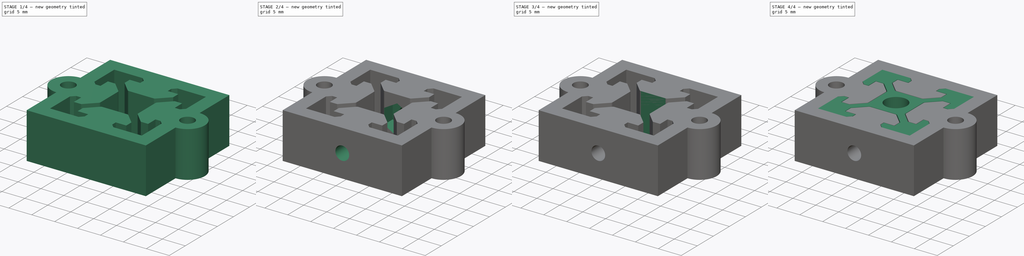
[diagram: build sequence overview — one tinted view per stage of 4, left to right]
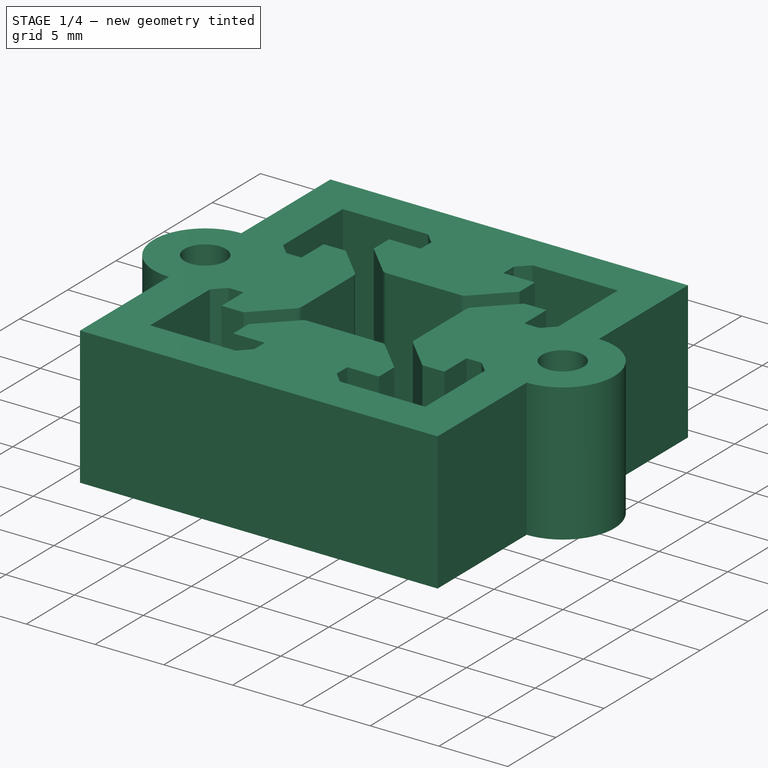
[diagram: stage 1 of 4 — iso view after this stage's code; geometry added in this stage tinted green]
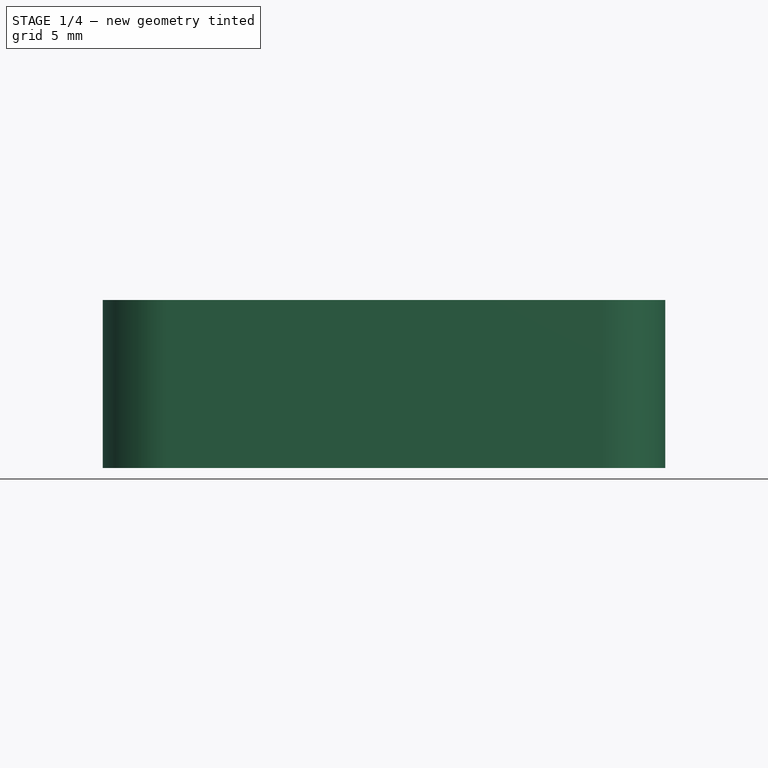
[diagram: stage 1 of 4 — front view after this stage's code; geometry added in this stage tinted green]
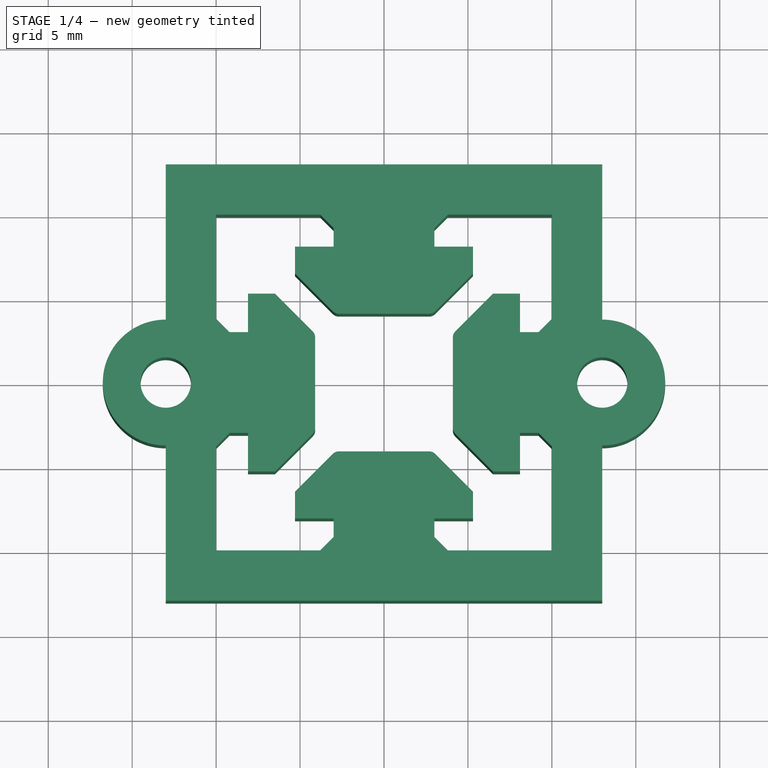
[diagram: stage 1 of 4 — top view after this stage's code; geometry added in this stage tinted green]
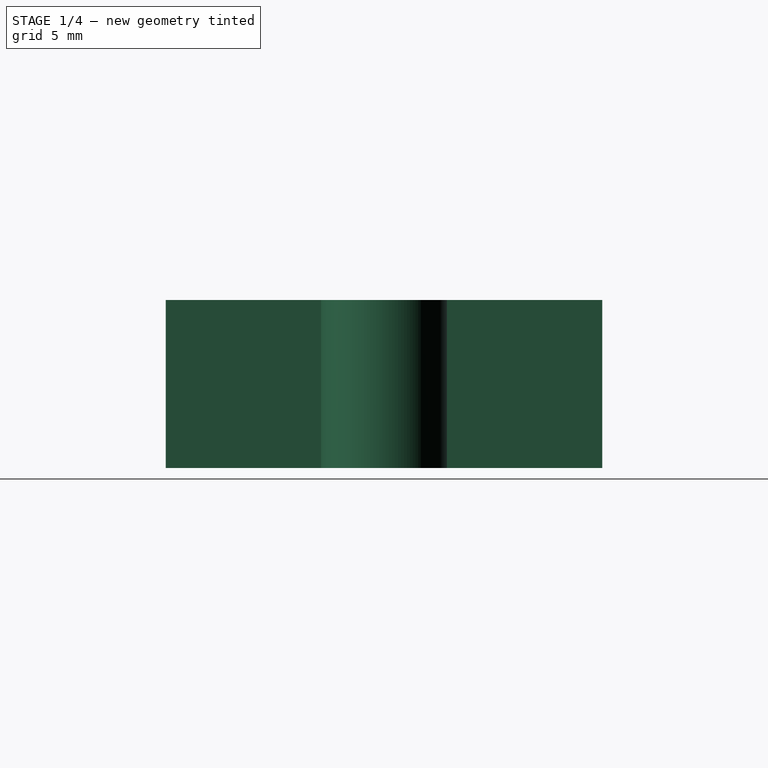
[diagram: stage 1 of 4 — right view after this stage's code; geometry added in this stage tinted green]
FCSTD DOCUMENT  (FreeCAD 0.19R23463 (Git))
Label: 2020
License: All rights reserved
LicenseURL: http://en.wikipedia.org/wiki/All_rights_reserved
objects: Sketcher::SketchObject×12, PartDesign::Pad×5, PartDesign::Pocket×5, PartDesign::Body×4, PartDesign::PolarPattern×3, PartDesign::Plane×3, Spreadsheet::Sheet×2
note: 42 computed .brp shape members not serialized (recipe doc carries the construction recipe); baked Part::Feature solids carry a one-line shape summary decoded from their .brp

FEATURE [PartDesign::Body] Body002  label="2020_slider"
  Group = -> [Sketch006,Sketch009,Pad004]
  Origin = -> Origin002
  Placement = pos=(0,0,24) rot=(0,0,1;0rad)
  Tip = -> Pad004
FEATURE [Sketcher::SketchObject] Sketch010
  MapMode = 5
  Support = -> [XY_Plane003]
  sketch-geometry (22):
    g0: LineSegment StartX=-10 StartY=10 StartZ=0 EndX=10 EndY=10 EndZ=0
    g1: LineSegment StartX=10 StartY=10 StartZ=0 EndX=10 EndY=-10 EndZ=0
    g2: LineSegment StartX=10 StartY=-10 StartZ=0 EndX=-10 EndY=-10 EndZ=0
    g3: LineSegment StartX=-10 StartY=-10 StartZ=0 EndX=-10 EndY=10 EndZ=0
    g4: LineSegment StartX=-10 StartY=10 StartZ=0 EndX=10 EndY=-10 EndZ=0
    g5: LineSegment StartX=-10 StartY=-10 StartZ=0 EndX=10 EndY=10 EndZ=0
    g6: GeomPoint X=0 Y=0 Z=0
    g7: LineSegment StartX=-13 StartY=13 StartZ=0 EndX=13 EndY=13 EndZ=0
    g8: LineSegment StartX=13 StartY=13 StartZ=0 EndX=13 EndY=-13 EndZ=0
    g9: LineSegment StartX=13 StartY=-13 StartZ=0 EndX=-13 EndY=-13 EndZ=0
    g10: LineSegment StartX=-13 StartY=-13 StartZ=0 EndX=-13 EndY=13 EndZ=0
    g11: LineSegment StartX=-13 StartY=13 StartZ=0 EndX=13 EndY=-13 EndZ=0
    g12: LineSegment StartX=-13 StartY=-13 StartZ=0 EndX=13 EndY=13 EndZ=0
    g13: GeomPoint X=0 Y=0 Z=0
    g14: ArcOfCircle CenterX=-13 CenterY=0 CenterZ=0 NormalX=0 NormalY=0 NormalZ=1 AngleXU=0 Radius=3.75 StartAngle=1.5708 EndAngle=4.71239
    g15: ArcOfCircle CenterX=13 CenterY=0 CenterZ=0 NormalX=0 NormalY=0 NormalZ=1 AngleXU=0 Radius=3.75 StartAngle=4.71239 EndAngle=7.85398
    g16: LineSegment StartX=-13 StartY=13 StartZ=0 EndX=-13 EndY=3.75 EndZ=0
    g17: LineSegment StartX=-13 StartY=-3.75 StartZ=0 EndX=-13 EndY=-13 EndZ=0
    g18: LineSegment StartX=13 StartY=-13 StartZ=0 EndX=13 EndY=-3.75 EndZ=0
    g19: LineSegment StartX=13 StartY=3.75 StartZ=0 EndX=13 EndY=13 EndZ=0
    g20: Circle CenterX=-13 CenterY=0 CenterZ=0 NormalX=0 NormalY=0 NormalZ=1 AngleXU=0 Radius=1.5
    g21: Circle CenterX=13 CenterY=0 CenterZ=0 NormalX=0 NormalY=0 NormalZ=1 AngleXU=0 Radius=1.5
  constraints (56):
    c: Coincident(g0,g1)
    c: Coincident(g1,g2)
    c: Coincident(g2,g3)
    c: Coincident(g3,g0)
    c: Horizontal(g0)
    c: Vertical(g1)
    c: Equal(g0,g1)
    c: Vertical(g3)
    c: Horizontal(g2)
    c: DistanceX(g0,g0) = 20
    c: Coincident(g4,g0)
    c: Coincident(g4,g1)
    c: Coincident(g5,g2)
    c: Coincident(g5,g0)
    c: PointOnObject(g6,g4)
    c: PointOnObject(g6,g5)
    c: Coincident(g6,g-1)
    c: Coincident(g7,g8)
    c: Coincident(g8,g9)
    c: Coincident(g9,g10)
    c: Coincident(g10,g7)
    c: Horizontal(g7)
    c: Vertical(g8)
    c: Horizontal(g9)
    c: Coincident(g11,g7)
    c: Coincident(g11,g8)
    c: Coincident(g12,g9)
    c: Coincident(g12,g7)
    c: PointOnObject(g13,g11)
    c: PointOnObject(g13,g12)
    c: Coincident(g13,g6)
    c: Equal(g10,g7)
    c: DistanceY(g0,g7) = 3
    c: PointOnObject(g14,g10)
    c: PointOnObject(g14,g10)
    c: PointOnObject(g14,g10)
    c: PointOnObject(g14,g-1)
    c: PointOnObject(g15,g8)
    c: PointOnObject(g15,g8)
    c: PointOnObject(g15,g8)
    c: PointOnObject(g15,g-1)
    c: Equal(g15,g14)
    c: Diameter(g15) = 7.5
    c: Coincident(g16,g7)
    c: Coincident(g16,g14)
    c: Vertical(g16)
    c: Coincident(g17,g14)
    c: Coincident(g17,g9)
    c: Coincident(g18,g9)
    c: Coincident(g18,g15)
    c: Coincident(g19,g15)
    c: Coincident(g19,g7)
    c: Coincident(g20,g14)
    c: Coincident(g21,g15)
    c: Equal(g21,g20)
    c: Diameter(g20) = 3
FEATURE [Sketcher::SketchObject] Sketch011
  MapMode = 5
  Support = -> [XY_Plane003]
  expr: Constraints[46] = 4.2mm - <<sp_slider>>.B1
  expr: Constraints[13] = 1.8mm + <<sp_slider>>.B1 / 2
  expr: Constraints[11] = 6.2mm - <<sp_slider>>.B1
  expr: Constraints[0] = 10.8mm - <<sp_slider>>.B1
  expr: Constraints[10] = 1.8mm - <<sp_slider>>.B1
  sketch-geometry (18):
    g0: LineSegment StartX=-5.3 StartY=8.1 StartZ=0 EndX=-5.3 EndY=6.5 EndZ=0
    g1: LineSegment StartX=5.3 StartY=8.1 StartZ=0 EndX=5.3 EndY=6.5 EndZ=0
    g2: LineSegment StartX=-5.3 StartY=6.5 StartZ=0 EndX=-3.04645 EndY=4.24645 EndZ=0
    g3: LineSegment StartX=5.3 StartY=6.5 StartZ=0 EndX=3.04645 EndY=4.24645 EndZ=0
    g4: LineSegment StartX=2.69289 StartY=4.1 StartZ=0 EndX=-2.69289 EndY=4.1 EndZ=0
    g5: GeomPoint X=0 Y=8.1 Z=0
    g6: LineSegment StartX=-3 StartY=10 StartZ=0 EndX=-3 EndY=8.1 EndZ=0
    g7: LineSegment StartX=-5.3 StartY=8.1 StartZ=0 EndX=-3 EndY=8.1 EndZ=0
    g8: LineSegment StartX=3 StartY=8.1 StartZ=0 EndX=5.3 EndY=8.1 EndZ=0
    g9: ArcOfCircle CenterX=-2.69289 CenterY=4.6 CenterZ=0 NormalX=0 NormalY=0 NormalZ=1 AngleXU=0 Radius=0.5 StartAngle=3.92699 EndAngle=4.71239
    g10: ArcOfCircle CenterX=2.69289 CenterY=4.6 CenterZ=0 NormalX=0 NormalY=0 NormalZ=1 AngleXU=0 Radius=0.5 StartAngle=4.71239 EndAngle=5.49779
    g11: LineSegment StartX=-3 StartY=8.1 StartZ=0 EndX=3 EndY=8.1 EndZ=0
    g12: LineSegment StartX=3 StartY=8.1 StartZ=0 EndX=3 EndY=10 EndZ=0
    g13: LineSegment StartX=-3 StartY=8.1 StartZ=0 EndX=-3 EndY=9.2 EndZ=0
    g14: LineSegment StartX=-3.8 StartY=10 StartZ=0 EndX=3.8 EndY=10 EndZ=0
    g15: LineSegment StartX=-3.8 StartY=10 StartZ=0 EndX=-3 EndY=9.2 EndZ=0
    g16: LineSegment StartX=3.8 StartY=10 StartZ=0 EndX=3 EndY=9.2 EndZ=0
    g17: LineSegment StartX=3 StartY=9.2 StartZ=0 EndX=3 EndY=8.1 EndZ=0
  constraints (47):
    c: DistanceX(g0,g1) = 10.6
    c: Vertical(g0)
    c: Vertical(g1)
    c: Coincident(g2,g0)
    c: Coincident(g3,g1)
    c: Equal(g2,g3)
    c: Equal(g0,g1)
    c: Angle(g2,g0) = 2.35619
    c: PointOnObject(g5,g-2)
    c: Symmetric(g0,g1,g5)
    c: DistanceY(g1,g1) = 1.6
    c: DistanceX(g6,g12) = 6
    c: Vertical(g6)
    c: DistanceY(g8,g12) = 1.9
    c: Coincident(g7,g6)
    c: Equal(g8,g7)
    c: Horizontal(g7)
    c: Coincident(g0,g7)
    c: Horizontal(g8)
    c: Coincident(g1,g8)
    c: Tangent(g2,g9) = -1.5708
    c: Tangent(g4,g9) = 1.5708
    c: Tangent(g3,g10) = 1.5708
    c: Tangent(g4,g10) = 1.5708
    c: Diameter(g9) = 1
    c: Symmetric(g4,g4,g-2)
    c: Coincident(g11,g7)
    c: Coincident(g11,g8)
    c: Horizontal(g11)
    c: Coincident(g12,g8)
    c: Vertical(g12)
    c: Coincident(g7,g13)
    c: PointOnObject(g12,g14)
    c: PointOnObject(g6,g14)
    c: Coincident(g15,g14)
    c: Coincident(g15,g13)
    c: Coincident(g16,g14)
    c: PointOnObject(g16,g12)
    c: Coincident(g17,g16)
    c: Coincident(g17,g8)
    c: PointOnObject(g13,g6)
    c: Symmetric(g14,g14,g-2)
    c: DistanceY(g-1,g14) = 10
    c: Angle(g14,g16) = 0.785398
    c: Angle(g15,g14) = 0.785398
    c: DistanceY(g13,g14) = 0.8
    c: DistanceY(g4,g7) = 4
FEATURE [PartDesign::Pad] Pad005
  Direction = (1,1,1)
  Length = 10
  Length2 = 100
  Profile = -> Sketch010
  Type = 0
FEATURE [PartDesign::Pad] Pad006
  BaseFeature = -> Pad005
  Direction = (1,1,1)
  Length = 10
  Length2 = 100
  Profile = -> Sketch011
  Type = 0
FEATURE [PartDesign::PolarPattern] PolarPattern001
  Angle = 360
  Axis = -> Sketch011 [N_Axis]
  BaseFeature = -> Pad006
  Occurrences = 4
  Originals = -> [Pad006]
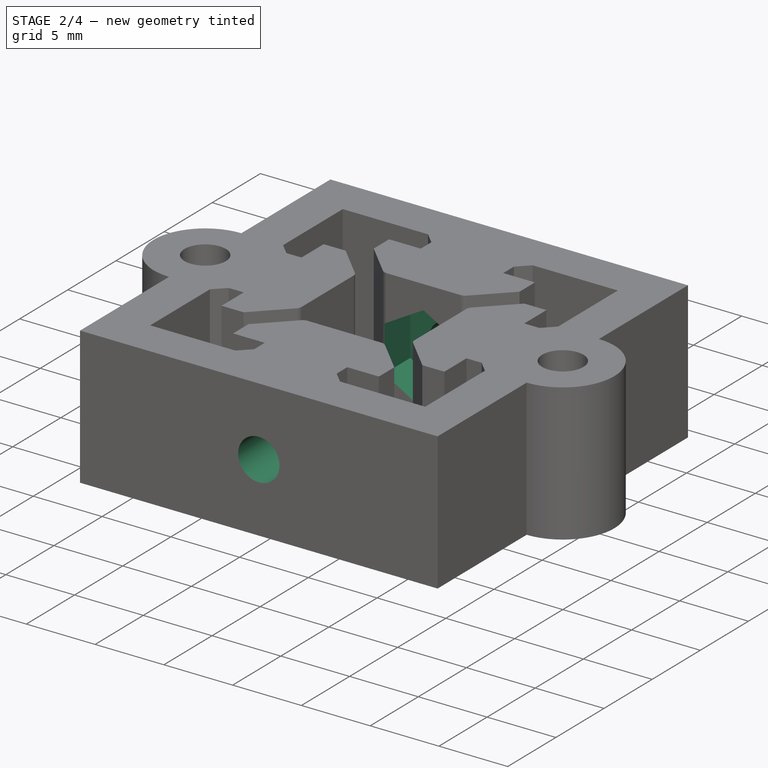
[diagram: stage 2 of 4 — iso view after this stage's code; geometry added in this stage tinted green]
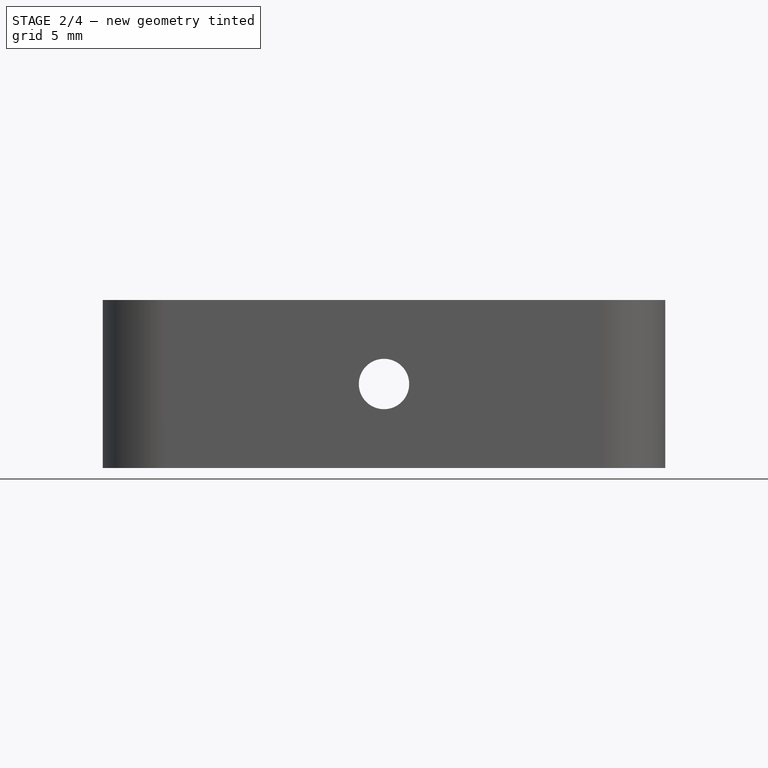
[diagram: stage 2 of 4 — front view after this stage's code; geometry added in this stage tinted green]
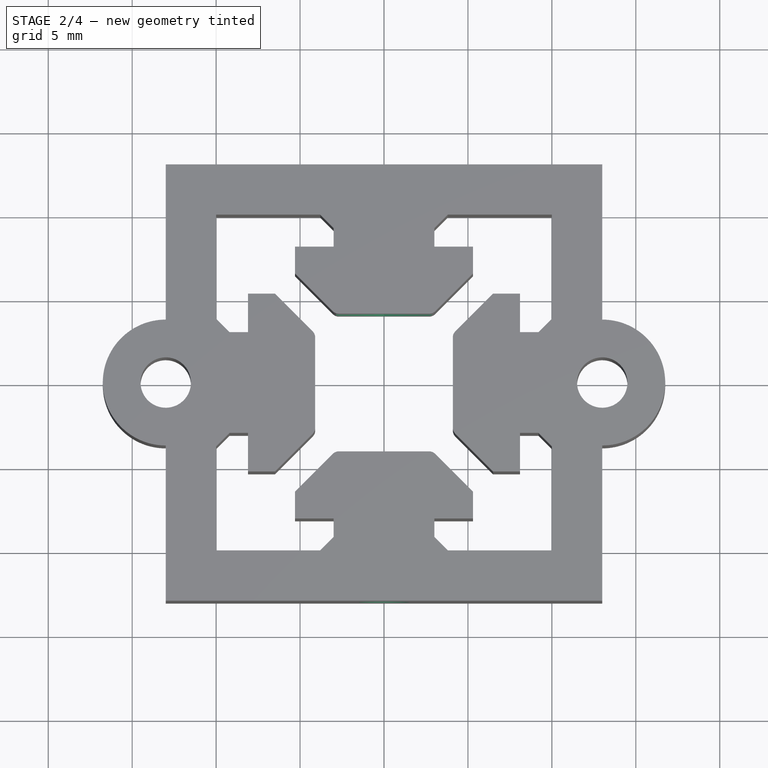
[diagram: stage 2 of 4 — top view after this stage's code; geometry added in this stage tinted green]
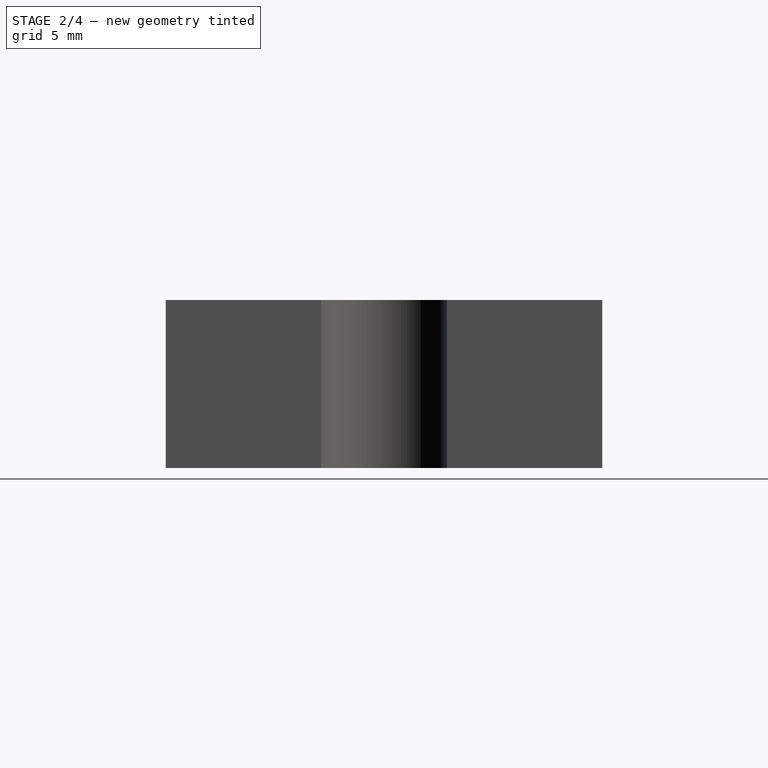
[diagram: stage 2 of 4 — right view after this stage's code; geometry added in this stage tinted green]
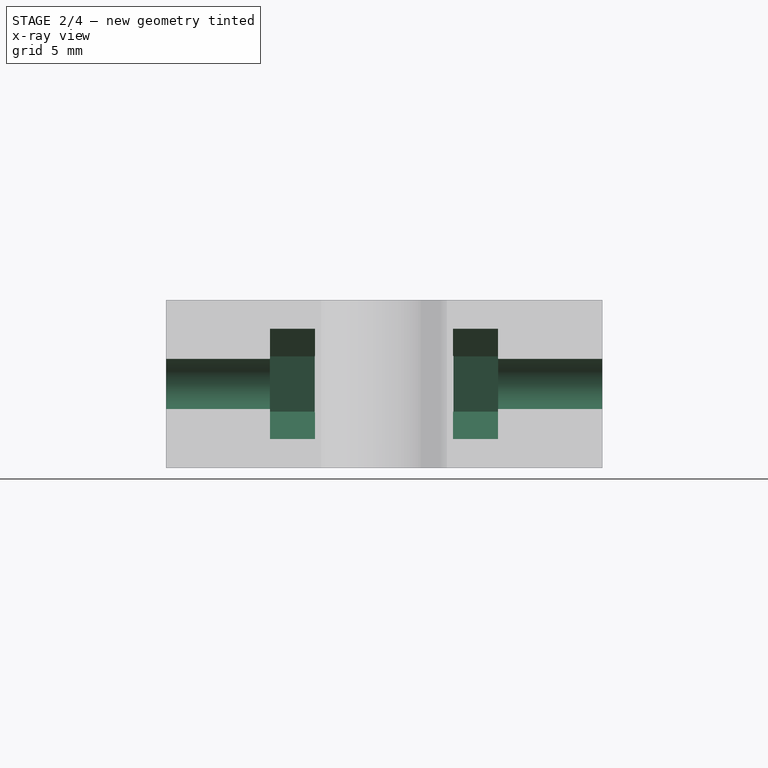
[diagram: stage 2 of 4 — x-ray composite at the right view; earlier geometry ghosted, this stage's added geometry solid]
FEATURE [PartDesign::Plane] DatumPlane001
  Length = 60
  ResizeMode = 0
  Width = 60
FEATURE [PartDesign::Body] Body001  label="2020_slider_nut"
  Group = -> [Sketch002,Sketch003,Pad003,DatumPlane,Sketch004,Pocket001,Sketch005,Pocket002,DatumPlane001]
  Origin = -> Origin001
  Placement = pos=(0,0,12) rot=(0,0,1;0rad)
  Tip = -> Pocket002
FEATURE [PartDesign::Plane] DatumPlane002
  Length = 60
  MapMode = 5
  Placement = pos=(0,-4.1,0) rot=(0,0.707107,0.707107;3.14159rad)
  ResizeMode = 0
  Support = -> [PolarPattern001]
  Width = 60
FEATURE [Sketcher::SketchObject] Sketch012
  ExternalGeometry = -> [PolarPattern001]
  MapMode = 5
  Placement = pos=(0,-4.1,0) rot=(0,0.707107,0.707107;3.14159rad)
  Support = -> [DatumPlane002]
  expr: Constraints[19] = 5.7mm
  sketch-geometry (8):
    g0: LineSegment StartX=2.85 StartY=6.64545 StartZ=0 EndX=4.55884e-11 EndY=8.2909 EndZ=0
    g1: LineSegment StartX=4.55885e-11 StartY=8.2909 StartZ=0 EndX=-2.85 EndY=6.64545 EndZ=0
    g2: LineSegment StartX=-2.85 StartY=6.64545 StartZ=0 EndX=-2.85 EndY=3.35455 EndZ=0
    g3: LineSegment StartX=-2.85 StartY=3.35455 StartZ=0 EndX=1.7728e-12 EndY=1.7091 EndZ=0
    g4: LineSegment StartX=1.7728e-12 StartY=1.7091 StartZ=0 EndX=2.85 EndY=3.35455 EndZ=0
    g5: LineSegment StartX=2.85 StartY=3.35455 StartZ=0 EndX=2.85 EndY=6.64545 EndZ=0
    g6: Circle CenterX=0 CenterY=5 CenterZ=0 NormalX=0 NormalY=0 NormalZ=1 AngleXU=0 Radius=3.2909
    g7: GeomPoint X=0 Y=10 Z=0
  constraints (18):
    c: Coincident(g0,g1)
    c: Coincident(g1,g2)
    c: Coincident(g2,g3)
    c: Coincident(g3,g4)
    c: Coincident(g4,g5)
    c: Coincident(g5,g0)
    c: Equal(g0, g1-g5) x5
    c: PointOnObject(g0,g6)
    c: PointOnObject(g1,g6)
    c: PointOnObject(g2,g6)
    c: PointOnObject(g3,g6)
    c: PointOnObject(g4,g6)
    c: PointOnObject(g5,g6)
    c: PointOnObject(g6,g-2)
    c: Vertical(g5)
    c: DistanceX(g1,g0) = 5.7
    c: Symmetric(g-1,g7,g6)
    c: PointOnObject(g7,g-3)
FEATURE [PartDesign::Pocket] Pocket003  label="nut_pocket"
  BaseFeature = -> PolarPattern001
  Length = 2.7
  Length2 = 100
  Profile = -> Sketch012
  Type = 0
FEATURE [PartDesign::PolarPattern] PolarPattern002
  Angle = 360
  Axis = -> Z_Axis003
  BaseFeature = -> Pocket003
  Occurrences = 2
  Originals = -> [Pocket003]
FEATURE [Sketcher::SketchObject] Sketch013
  ExternalGeometry = -> [PolarPattern002]
  MapMode = 5
  Placement = pos=(0,-4.1,0) rot=(0,0.707107,0.707107;3.14159rad)
  Support = -> [DatumPlane002]
  sketch-geometry (2):
    g0: Circle CenterX=0 CenterY=5 CenterZ=0 NormalX=0 NormalY=0 NormalZ=1 AngleXU=0 Radius=1.5
    g1: GeomPoint X=0 Y=10 Z=0
  constraints (4):
    c: Diameter(g0) = 3
    c: PointOnObject(g1,g-2)
    c: Symmetric(g1,g-1,g0)
    c: PointOnObject(g1,g-3)
FEATURE [PartDesign::Pocket] Pocket004  label="screw_pocket"
  BaseFeature = -> PolarPattern002
  Length = 5
  Length2 = 100
  Midplane = true
  Profile = -> Sketch013
  Reversed = true
  Type = 1
FEATURE [PartDesign::Body] Body003  label="2020_profile_socket"
  Group = -> [Sketch010,Sketch011,Pad005,Pad006,PolarPattern001,DatumPlane002,Sketch012,Pocket003,PolarPattern002,Sketch013,Pocket004]
  Origin = -> Origin003
  Placement = pos=(0,0,1) rot=(0,0,1;0rad)
  Tip = -> Pocket004
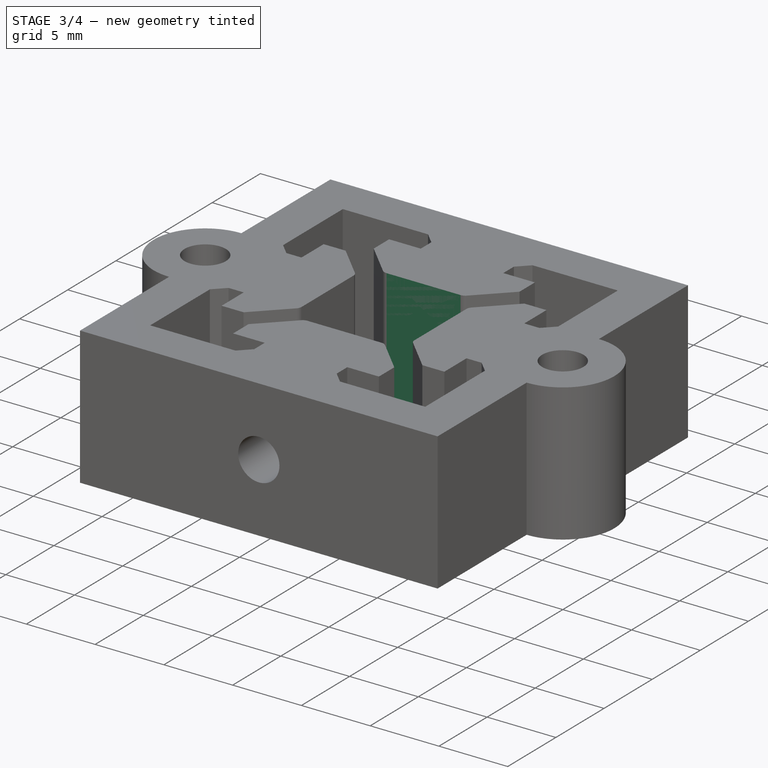
[diagram: stage 3 of 4 — iso view after this stage's code; geometry added in this stage tinted green]
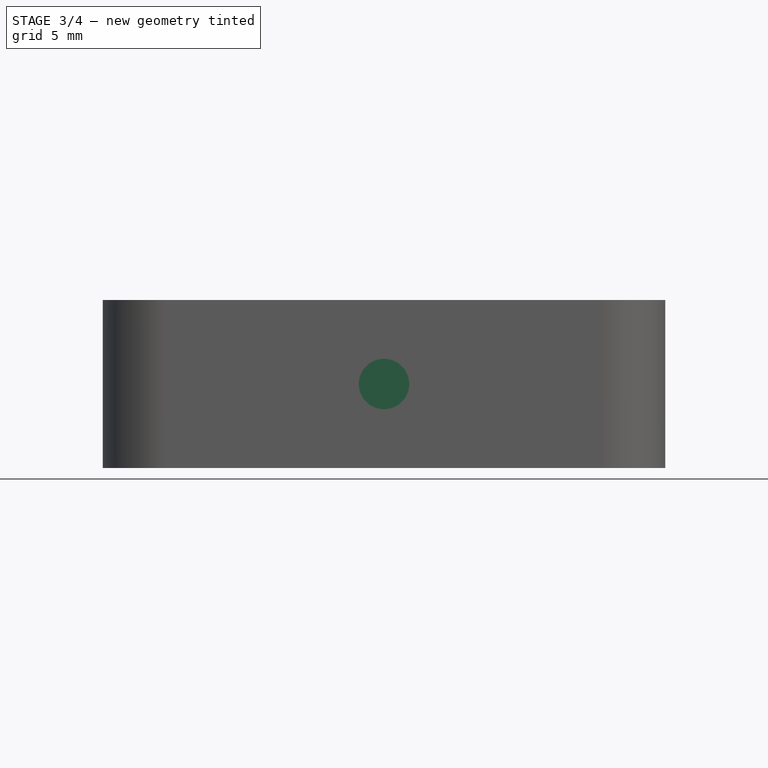
[diagram: stage 3 of 4 — front view after this stage's code; geometry added in this stage tinted green]
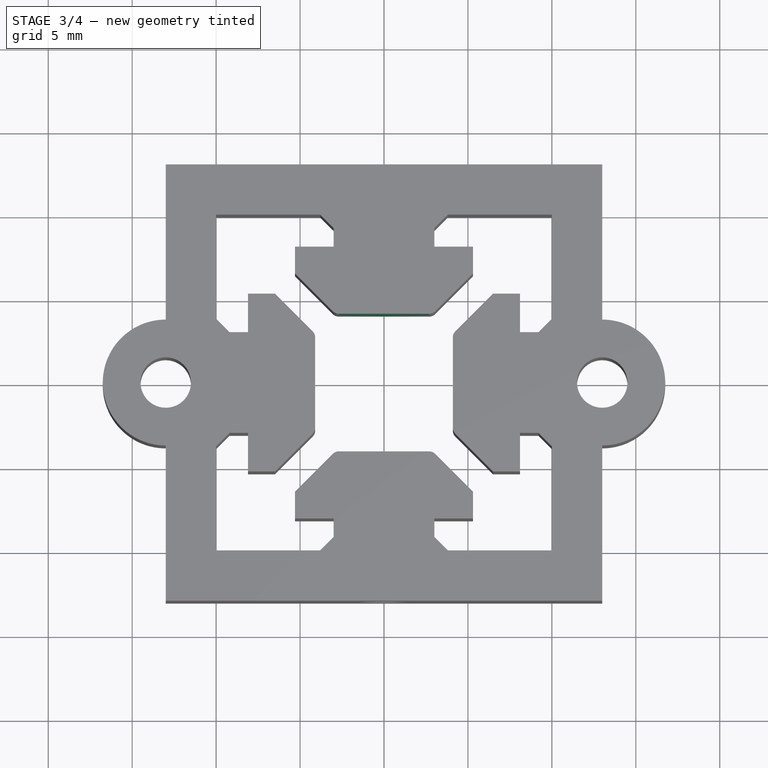
[diagram: stage 3 of 4 — top view after this stage's code; geometry added in this stage tinted green]
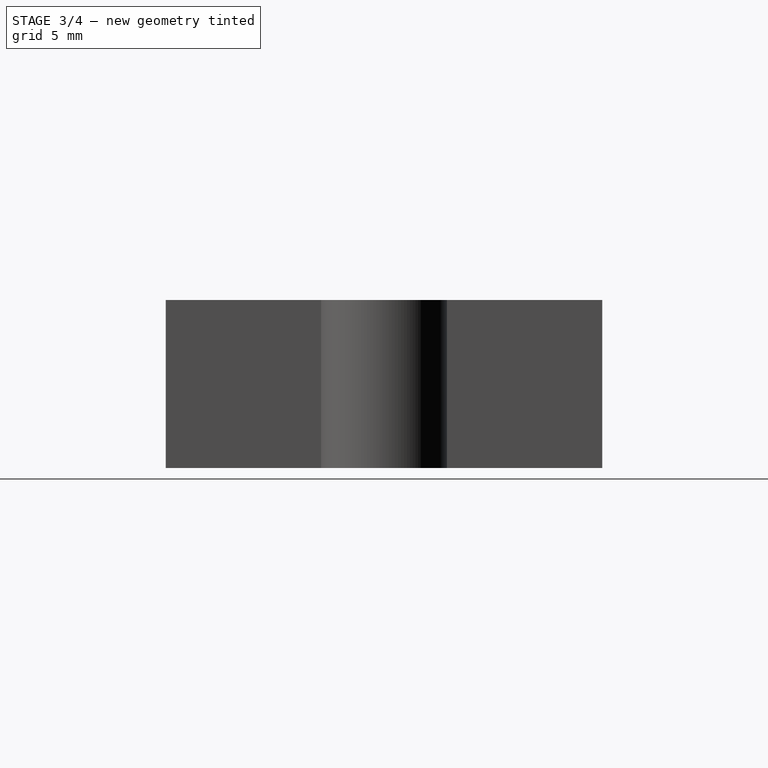
[diagram: stage 3 of 4 — right view after this stage's code; geometry added in this stage tinted green]
FEATURE [PartDesign::Body] Body  label="2020_profile"
  Group = -> [Sketch,Sketch001,Pad,Pocket,PolarPattern]
  Origin = -> Origin
  Tip = -> PolarPattern
FEATURE [Sketcher::SketchObject] Sketch002
  MapMode = 5
  Support = -> [XY_Plane001]
  sketch-geometry (5):
    g0: Circle CenterX=2e-16 CenterY=-1.6e-15 CenterZ=0 NormalX=0 NormalY=0 NormalZ=1 AngleXU=0 Radius=2.4
    g1: LineSegment StartX=-10 StartY=10 StartZ=0 EndX=10 EndY=10 EndZ=0
    g2: LineSegment StartX=10 StartY=10 StartZ=0 EndX=10 EndY=-10 EndZ=0
    g3: LineSegment StartX=10 StartY=-10 StartZ=0 EndX=-10 EndY=-10 EndZ=0
    g4: LineSegment StartX=-10 StartY=-10 StartZ=0 EndX=-10 EndY=10 EndZ=0
  constraints (13):
    c: Coincident(g0,g-1)
    c: Coincident(g1,g2)
    c: Coincident(g2,g3)
    c: Coincident(g3,g4)
    c: Coincident(g4,g1)
    c: Horizontal(g1)
    c: Vertical(g2)
    c: Symmetric(g3,g1,g0)
    c: Equal(g1,g2)
    c: Vertical(g4)
    c: Horizontal(g3)
    c: DistanceX(g1,g1) = 20
    c: Diameter(g0) = 4.8
FEATURE [Sketcher::SketchObject] Sketch003
  MapMode = 5
  Support = -> [XY_Plane001]
  expr: Constraints[11] = 6.2mm - <<sp_slider_nut>>.B1
  expr: Constraints[0] = 10.8mm - <<sp_slider_nut>>.B1
  expr: Constraints[49] = 4.2mm - <<sp_slider_nut>>.B1
  expr: Constraints[12] = 1.8mm + <<sp_slider_nut>>.B1 / 2
  expr: Constraints[10] = 1.8mm - <<sp_slider_nut>>.B1
  sketch-geometry (19):
    g0: LineSegment StartX=-5.3 StartY=8.1 StartZ=0 EndX=-5.3 EndY=6.5 EndZ=0
    g1: LineSegment StartX=5.3 StartY=8.1 StartZ=0 EndX=5.3 EndY=6.5 EndZ=0
    g2: LineSegment StartX=-5.3 StartY=6.5 StartZ=0 EndX=-3.04645 EndY=4.24645 EndZ=0
    g3: LineSegment StartX=5.3 StartY=6.5 StartZ=0 EndX=3.04645 EndY=4.24645 EndZ=0
    g4: LineSegment StartX=2.69289 StartY=4.1 StartZ=0 EndX=-2.69289 EndY=4.1 EndZ=0
    g5: GeomPoint X=0 Y=8.1 Z=0
    g6: LineSegment StartX=-3 StartY=10 StartZ=0 EndX=3 EndY=10 EndZ=0
    g7: LineSegment StartX=-5.3 StartY=8.1 StartZ=0 EndX=-3 EndY=8.1 EndZ=0
    g8: LineSegment StartX=3 StartY=8.1 StartZ=0 EndX=5.3 EndY=8.1 EndZ=0
    g9: ArcOfCircle CenterX=-2.69289 CenterY=4.6 CenterZ=0 NormalX=0 NormalY=0 NormalZ=1 AngleXU=0 Radius=0.5 StartAngle=3.92699 EndAngle=4.71239
    g10: ArcOfCircle CenterX=2.69289 CenterY=4.6 CenterZ=0 NormalX=0 NormalY=0 NormalZ=1 AngleXU=0 Radius=0.5 StartAngle=4.71239 EndAngle=5.49779
    g11: LineSegment StartX=-3 StartY=8.1 StartZ=0 EndX=-3 EndY=9.2 EndZ=0
    g12: LineSegment StartX=-3 StartY=9.2 StartZ=0 EndX=-3.8 EndY=10 EndZ=0
    g13: LineSegment StartX=-3.8 StartY=10 StartZ=0 EndX=-3 EndY=10 EndZ=0
    g14: LineSegment StartX=3 StartY=10 StartZ=0 EndX=3.8 EndY=10 EndZ=0
    g15: LineSegment StartX=3.8 StartY=10 StartZ=0 EndX=3 EndY=9.2 EndZ=0
    g16: LineSegment StartX=3 StartY=9.2 StartZ=0 EndX=3 EndY=8.1 EndZ=0
    g17: LineSegment StartX=-3 StartY=9.2 StartZ=0 EndX=-3 EndY=10 EndZ=0
    g18: LineSegment StartX=3 StartY=9.2 StartZ=0 EndX=3 EndY=10 EndZ=0
  constraints (50):
    c: DistanceX(g0,g1) = 10.6
    c: Vertical(g0)
    c: Vertical(g1)
    c: Coincident(g2,g0)
    c: Coincident(g3,g1)
    c: Equal(g2,g3)
    c: Equal(g0,g1)
    c: Angle(g2,g0) = 2.35619
    c: PointOnObject(g5,g-2)
    c: Symmetric(g0,g1,g5)
    c: DistanceY(g1,g1) = 1.6
    c: DistanceX(g6,g6) = 6
    c: DistanceY(g8,g6) = 1.9
    c: Equal(g8,g7)
    c: Horizontal(g7)
    c: Coincident(g0,g7)
    c: Horizontal(g8)
    c: Coincident(g1,g8)
    c: Tangent(g2,g9) = -1.5708
    c: Tangent(g4,g9) = 1.5708
    c: Tangent(g3,g10) = 1.5708
    c: Tangent(g4,g10) = 1.5708
    c: Diameter(g9) = 1
    c: Symmetric(g4,g4,g-2)
    c: Coincident(g11,g7)
    c: Coincident(g12,g11)
    c: Coincident(g13,g12)
    c: Coincident(g13,g6)
    c: Coincident(g14,g6)
    c: Coincident(g15,g14)
    c: Coincident(g16,g15)
    c: Coincident(g16,g8)
    c: Angle(g14,g15) = 0.785398
    c: DistanceY(g15,g14) = 0.8
    c: Equal(g13,g14)
    c: Equal(g12,g15)
    c: Coincident(g17,g11)
    c: Coincident(g17,g6)
    c: Vertical(g17)
    c: Coincident(g18,g16)
    c: Coincident(g18,g6)
    c: Vertical(g18)
    c: Vertical(g16)
    c: Vertical(g11)
    c: Equal(g11,g16)
    c: DistanceY(g-1,g6) = 10
    c: Horizontal(g6)
    c: Horizontal(g13)
    c: Horizontal(g14)
    c: DistanceY(g4,g7) = 4
FEATURE [PartDesign::Pad] Pad003
  Direction = (1,1,1)
  Length = 10
  Length2 = 100
  Profile = -> Sketch003
  Type = 0
FEATURE [PartDesign::Plane] DatumPlane
  Length = 60
  MapMode = 5
  Placement = pos=(0,4.1,0) rot=(1,0,0;1.5708rad)
  ResizeMode = 0
  Support = -> [Pad003]
  Width = 60
FEATURE [Sketcher::SketchObject] Sketch004
  ExternalGeometry = -> [Pad003]
  MapMode = 5
  Placement = pos=(0,4.1,0) rot=(1,0,0;1.5708rad)
  Support = -> [DatumPlane]
  sketch-geometry (9):
    g0: LineSegment StartX=-2.69289 StartY=10 StartZ=0 EndX=2.69289 EndY=0 EndZ=0
    g1: LineSegment StartX=-2.69289 StartY=0 StartZ=0 EndX=2.69289 EndY=10 EndZ=0
    g2: LineSegment StartX=2.85 StartY=3.35455 StartZ=0 EndX=2.85 EndY=6.64545 EndZ=0
    g3: LineSegment StartX=2.85 StartY=6.64545 StartZ=0 EndX=4e-16 EndY=8.2909 EndZ=0
    g4: LineSegment StartX=4e-16 StartY=8.2909 StartZ=0 EndX=-2.85 EndY=6.64545 EndZ=0
    g5: LineSegment StartX=-2.85 StartY=6.64545 StartZ=0 EndX=-2.85 EndY=3.35455 EndZ=0
    g6: LineSegment StartX=-2.85 StartY=3.35455 StartZ=0 EndX=4e-16 EndY=1.7091 EndZ=0
    g7: LineSegment StartX=4e-16 StartY=1.7091 StartZ=0 EndX=2.85 EndY=3.35455 EndZ=0
    g8: Circle CenterX=3e-16 CenterY=5 CenterZ=0 NormalX=0 NormalY=0 NormalZ=1 AngleXU=0 Radius=3.2909
  constraints (21):
    c: Coincident(g0,g-3)
    c: Coincident(g0,g-4)
    c: Coincident(g1,g-4)
    c: Coincident(g1,g-3)
    c: Coincident(g2,g3)
    c: Coincident(g3,g4)
    c: Coincident(g4,g5)
    c: Coincident(g5,g6)
    c: Coincident(g6,g7)
    c: Coincident(g7,g2)
    c: Equal(g2, g3-g7) x5
    c: PointOnObject(g2,g8)
    c: PointOnObject(g3,g8)
    c: PointOnObject(g4,g8)
    c: PointOnObject(g5,g8)
    c: PointOnObject(g6,g8)
    c: PointOnObject(g7,g8)
    c: PointOnObject(g8,g1)
    c: PointOnObject(g8,g0)
    c: Vertical(g2)
    c: DistanceX(g4,g2) = 5.7
FEATURE [PartDesign::Pocket] Pocket001
  BaseFeature = -> Pad003
  Length = 2.7
  Length2 = 100
  Profile = -> Sketch004
  Type = 0
FEATURE [Sketcher::SketchObject] Sketch005
  ExternalGeometry = -> [Pocket001]
  MapMode = 5
  Placement = pos=(0,4.1,0) rot=(1,0,0;1.5708rad)
  Support = -> [DatumPlane]
  sketch-geometry (3):
    g0: LineSegment StartX=-2.69289 StartY=10 StartZ=0 EndX=2.69289 EndY=0 EndZ=0
    g1: LineSegment StartX=-2.69289 StartY=0 StartZ=0 EndX=2.69289 EndY=10 EndZ=0
    g2: Circle CenterX=5e-16 CenterY=5 CenterZ=0 NormalX=0 NormalY=0 NormalZ=1 AngleXU=0 Radius=1.5
  constraints (7):
    c: Coincident(g0,g-3)
    c: Coincident(g0,g-4)
    c: Coincident(g1,g-4)
    c: Coincident(g1,g-3)
    c: PointOnObject(g2,g0)
    c: PointOnObject(g2,g1)
    c: Diameter(g2) = 3
FEATURE [PartDesign::Pocket] Pocket002
  BaseFeature = -> Pocket001
  Length = 5
  Length2 = 100
  Profile = -> Sketch005
  Type = 1
FEATURE [Spreadsheet::Sheet] Spreadsheet  label="sp_slider_nut"
  cells = A1=Tolerancia; B1==0.2mm
FEATURE [Spreadsheet::Sheet] Spreadsheet001  label="sp_slider"
  cells = A1=Tolerancia; B1==0.2mm
FEATURE [Sketcher::SketchObject] Sketch006
  MapMode = 5
  Support = -> [XY_Plane002]
  sketch-geometry (5):
    g0: Circle CenterX=2e-16 CenterY=-1.6e-15 CenterZ=0 NormalX=0 NormalY=0 NormalZ=1 AngleXU=0 Radius=2.4
    g1: LineSegment StartX=-10 StartY=10 StartZ=0 EndX=10 EndY=10 EndZ=0
    g2: LineSegment StartX=10 StartY=10 StartZ=0 EndX=10 EndY=-10 EndZ=0
    g3: LineSegment StartX=10 StartY=-10 StartZ=0 EndX=-10 EndY=-10 EndZ=0
    g4: LineSegment StartX=-10 StartY=-10 StartZ=0 EndX=-10 EndY=10 EndZ=0
  constraints (13):
    c: Coincident(g0,g-1)
    c: Coincident(g1,g2)
    c: Coincident(g2,g3)
    c: Coincident(g3,g4)
    c: Coincident(g4,g1)
    c: Horizontal(g1)
    c: Vertical(g2)
    c: Symmetric(g3,g1,g0)
    c: Equal(g1,g2)
    c: Vertical(g4)
    c: Horizontal(g3)
    c: DistanceX(g1,g1) = 20
    c: Diameter(g0) = 4.8
FEATURE [Sketcher::SketchObject] Sketch009
  MapMode = 5
  Support = -> [XY_Plane002]
  expr: Constraints[10] = 1.8mm - <<sp_slider>>.B1
  expr: Constraints[12] = 1.8mm + <<sp_slider>>.B1 / 2
  expr: Constraints[49] = 4.2mm - <<sp_slider>>.B1
  expr: Constraints[0] = 10.8mm - <<sp_slider>>.B1
  expr: Constraints[11] = 6.2mm - <<sp_slider>>.B1
  sketch-geometry (19):
    g0: LineSegment StartX=-5.3 StartY=8.1 StartZ=0 EndX=-5.3 EndY=6.5 EndZ=0
    g1: LineSegment StartX=5.3 StartY=8.1 StartZ=0 EndX=5.3 EndY=6.5 EndZ=0
    g2: LineSegment StartX=-5.3 StartY=6.5 StartZ=0 EndX=-3.04645 EndY=4.24645 EndZ=0
    g3: LineSegment StartX=5.3 StartY=6.5 StartZ=0 EndX=3.04645 EndY=4.24645 EndZ=0
    g4: LineSegment StartX=2.69289 StartY=4.1 StartZ=0 EndX=-2.69289 EndY=4.1 EndZ=0
    g5: GeomPoint X=0 Y=8.1 Z=0
    g6: LineSegment StartX=-3 StartY=10 StartZ=0 EndX=3 EndY=10 EndZ=0
    g7: LineSegment StartX=-5.3 StartY=8.1 StartZ=0 EndX=-3 EndY=8.1 EndZ=0
    g8: LineSegment StartX=3 StartY=8.1 StartZ=0 EndX=5.3 EndY=8.1 EndZ=0
    g9: ArcOfCircle CenterX=-2.69289 CenterY=4.6 CenterZ=0 NormalX=0 NormalY=0 NormalZ=1 AngleXU=0 Radius=0.5 StartAngle=3.92699 EndAngle=4.71239
    g10: ArcOfCircle CenterX=2.69289 CenterY=4.6 CenterZ=0 NormalX=0 NormalY=0 NormalZ=1 AngleXU=0 Radius=0.5 StartAngle=4.71239 EndAngle=5.49779
    g11: LineSegment StartX=-3 StartY=8.1 StartZ=0 EndX=-3 EndY=9.2 EndZ=0
    g12: LineSegment StartX=-3 StartY=9.2 StartZ=0 EndX=-3.8 EndY=10 EndZ=0
    g13: LineSegment StartX=-3.8 StartY=10 StartZ=0 EndX=-3 EndY=10 EndZ=0
    g14: LineSegment StartX=3 StartY=10 StartZ=0 EndX=3.8 EndY=10 EndZ=0
    g15: LineSegment StartX=3.8 StartY=10 StartZ=0 EndX=3 EndY=9.2 EndZ=0
    g16: LineSegment StartX=3 StartY=9.2 StartZ=0 EndX=3 EndY=8.1 EndZ=0
    g17: LineSegment StartX=-3 StartY=9.2 StartZ=0 EndX=-3 EndY=10 EndZ=0
    g18: LineSegment StartX=3 StartY=9.2 StartZ=0 EndX=3 EndY=10 EndZ=0
  constraints (50):
    c: DistanceX(g0,g1) = 10.6
    c: Vertical(g0)
    c: Vertical(g1)
    c: Coincident(g2,g0)
    c: Coincident(g3,g1)
    c: Equal(g2,g3)
    c: Equal(g0,g1)
    c: Angle(g2,g0) = 2.35619
    c: PointOnObject(g5,g-2)
    c: Symmetric(g0,g1,g5)
    c: DistanceY(g1,g1) = 1.6
    c: DistanceX(g6,g6) = 6
    c: DistanceY(g8,g6) = 1.9
    c: Equal(g8,g7)
    c: Horizontal(g7)
    c: Coincident(g0,g7)
    c: Horizontal(g8)
    c: Coincident(g1,g8)
    c: Tangent(g2,g9) = -1.5708
    c: Tangent(g4,g9) = 1.5708
    c: Tangent(g3,g10) = 1.5708
    c: Tangent(g4,g10) = 1.5708
    c: Diameter(g9) = 1
    c: Symmetric(g4,g4,g-2)
    c: Coincident(g11,g7)
    c: Coincident(g12,g11)
    c: Coincident(g13,g12)
    c: Coincident(g13,g6)
    c: Coincident(g14,g6)
    c: Coincident(g15,g14)
    c: Coincident(g16,g15)
    c: Coincident(g16,g8)
    c: Angle(g14,g15) = 0.785398
    c: DistanceY(g15,g14) = 0.8
    c: Equal(g13,g14)
    c: Equal(g12,g15)
    c: Coincident(g17,g11)
    c: Coincident(g17,g6)
    c: Vertical(g17)
    c: Coincident(g18,g16)
    c: Coincident(g18,g6)
    c: Vertical(g18)
    c: Vertical(g16)
    c: Vertical(g11)
    c: Equal(g11,g16)
    c: DistanceY(g-1,g6) = 10
    c: Horizontal(g6)
    c: Horizontal(g13)
    c: Horizontal(g14)
    c: DistanceY(g4,g7) = 4
FEATURE [PartDesign::Pad] Pad004
  Direction = (1,1,1)
  Length = 10
  Length2 = 100
  Profile = -> Sketch009
  Type = 0
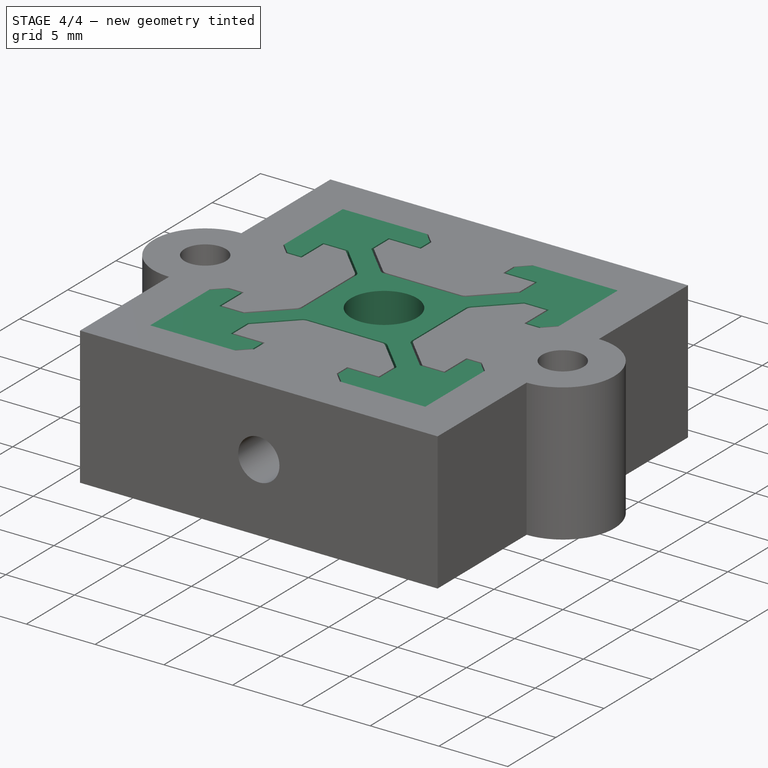
[diagram: stage 4 of 4 — iso view after this stage's code; geometry added in this stage tinted green]
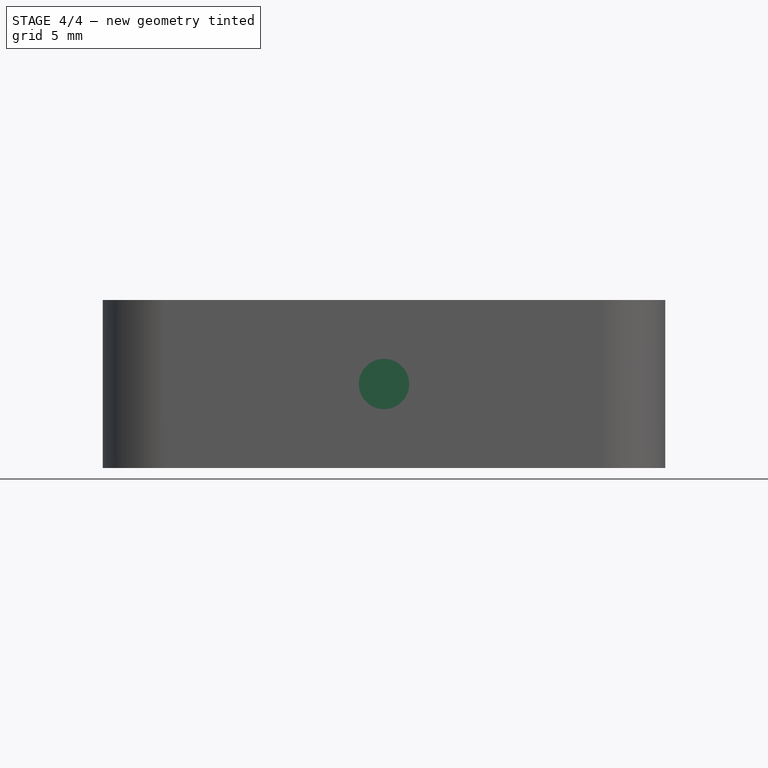
[diagram: stage 4 of 4 — front view after this stage's code; geometry added in this stage tinted green]
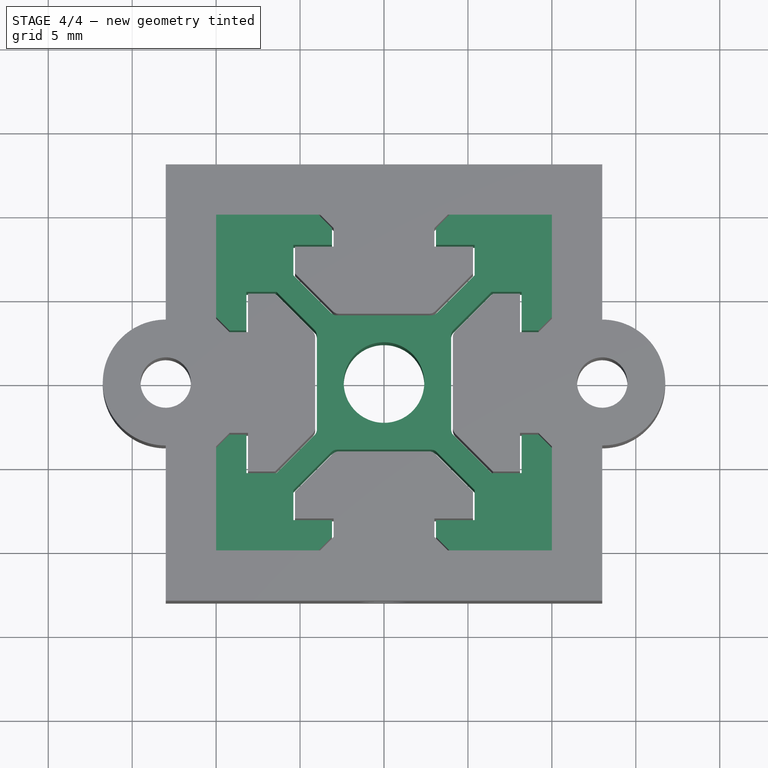
[diagram: stage 4 of 4 — top view after this stage's code; geometry added in this stage tinted green]
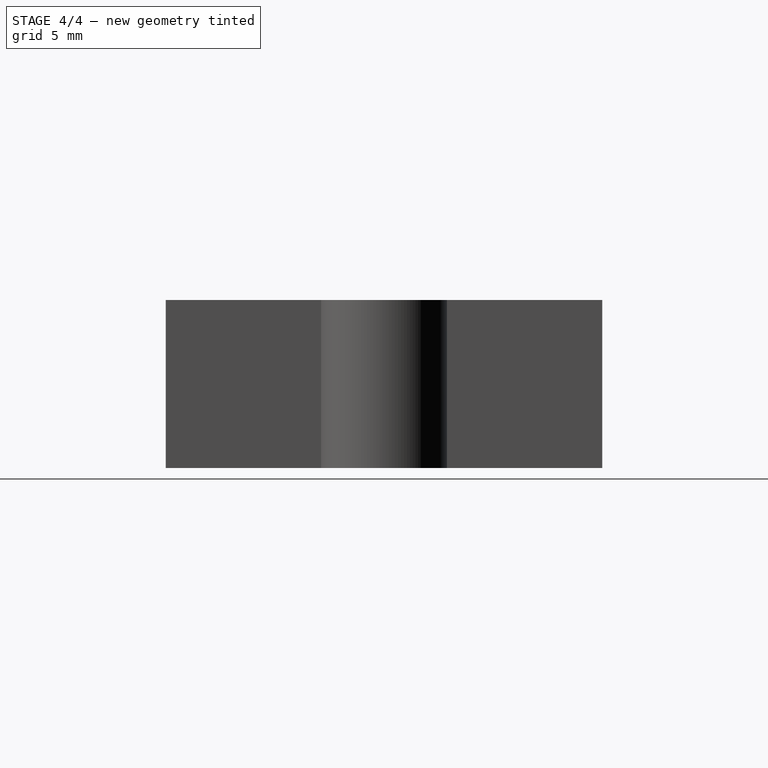
[diagram: stage 4 of 4 — right view after this stage's code; geometry added in this stage tinted green]
FEATURE [Sketcher::SketchObject] Sketch
  MapMode = 5
  Support = -> [XY_Plane]
  sketch-geometry (5):
    g0: Circle CenterX=2e-16 CenterY=-1.6e-15 CenterZ=0 NormalX=0 NormalY=0 NormalZ=1 AngleXU=0 Radius=2.4
    g1: LineSegment StartX=-10 StartY=10 StartZ=0 EndX=10 EndY=10 EndZ=0
    g2: LineSegment StartX=10 StartY=10 StartZ=0 EndX=10 EndY=-10 EndZ=0
    g3: LineSegment StartX=10 StartY=-10 StartZ=0 EndX=-10 EndY=-10 EndZ=0
    g4: LineSegment StartX=-10 StartY=-10 StartZ=0 EndX=-10 EndY=10 EndZ=0
  constraints (13):
    c: Coincident(g0,g-1)
    c: Coincident(g1,g2)
    c: Coincident(g2,g3)
    c: Coincident(g3,g4)
    c: Coincident(g4,g1)
    c: Horizontal(g1)
    c: Vertical(g2)
    c: Symmetric(g3,g1,g0)
    c: Equal(g1,g2)
    c: Vertical(g4)
    c: Horizontal(g3)
    c: DistanceX(g1,g1) = 20
    c: Diameter(g0) = 4.8
FEATURE [Sketcher::SketchObject] Sketch001
  ExternalGeometry = -> [Sketch]
  MapMode = 5
  Support = -> [XY_Plane]
  sketch-geometry (19):
    g0: LineSegment StartX=-5.4 StartY=8.2 StartZ=0 EndX=-5.4 EndY=6.4 EndZ=0
    g1: LineSegment StartX=5.4 StartY=8.2 StartZ=0 EndX=5.4 EndY=6.4 EndZ=0
    g2: LineSegment StartX=-5.4 StartY=6.4 StartZ=0 EndX=-3.14645 EndY=4.14645 EndZ=0
    g3: LineSegment StartX=5.4 StartY=6.4 StartZ=0 EndX=3.14645 EndY=4.14645 EndZ=0
    g4: LineSegment StartX=2.79289 StartY=4 StartZ=0 EndX=-2.79289 EndY=4 EndZ=0
    g5: GeomPoint X=0 Y=8.2 Z=0
    g6: LineSegment StartX=-3.1 StartY=10 StartZ=0 EndX=3.1 EndY=10 EndZ=0
    g7: LineSegment StartX=-3.1 StartY=10 StartZ=0 EndX=-3.1 EndY=8.2 EndZ=0
    g8: LineSegment StartX=3.1 StartY=10 StartZ=0 EndX=3.1 EndY=8.2 EndZ=0
    g9: LineSegment StartX=-5.4 StartY=8.2 StartZ=0 EndX=-3.1 EndY=8.2 EndZ=0
    g10: LineSegment StartX=3.1 StartY=8.2 StartZ=0 EndX=5.4 EndY=8.2 EndZ=0
    g11: ArcOfCircle CenterX=-2.79289 CenterY=4.5 CenterZ=0 NormalX=0 NormalY=0 NormalZ=1 AngleXU=0 Radius=0.5 StartAngle=3.92699 EndAngle=4.71239
    g12: ArcOfCircle CenterX=2.79289 CenterY=4.5 CenterZ=0 NormalX=0 NormalY=0 NormalZ=1 AngleXU=0 Radius=0.5 StartAngle=4.71239 EndAngle=5.49779
    g13: LineSegment StartX=-3.1 StartY=8.2 StartZ=0 EndX=-3.1 EndY=9.2 EndZ=0
    g14: LineSegment StartX=-3.1 StartY=9.2 StartZ=0 EndX=-3.9 EndY=10 EndZ=0
    g15: LineSegment StartX=-3.9 StartY=10 StartZ=0 EndX=-3.1 EndY=10 EndZ=0
    g16: LineSegment StartX=3.1 StartY=10 StartZ=0 EndX=3.9 EndY=10 EndZ=0
    g17: LineSegment StartX=3.9 StartY=10 StartZ=0 EndX=3.1 EndY=9.2 EndZ=0
    g18: LineSegment StartX=3.1 StartY=9.2 StartZ=0 EndX=3.1 EndY=8.2 EndZ=0
  constraints (50):
    c: DistanceX(g0,g1) = 10.8
    c: Vertical(g0)
    c: Vertical(g1)
    c: Coincident(g2,g0)
    c: Coincident(g3,g1)
    c: Equal(g2,g3)
    c: Equal(g0,g1)
    c: Angle(g2,g0) = 2.35619
    c: PointOnObject(g5,g-2)
    c: Symmetric(g0,g1,g5)
    c: DistanceY(g1,g1) = 1.8
    c: PointOnObject(g6,g-3)
    c: PointOnObject(g6,g-3)
    c: DistanceX(g6,g6) = 6.2
    c: Coincident(g7,g6)
    c: Vertical(g7)
    c: Coincident(g8,g6)
    c: Vertical(g8)
    c: DistanceY(g8,g8) = 1.8
    c: Equal(g8,g7)
    c: Coincident(g9,g7)
    c: Coincident(g10,g8)
    c: Equal(g10,g9)
    c: Horizontal(g9)
    c: Coincident(g0,g9)
    c: Horizontal(g10)
    c: Coincident(g1,g10)
    c: Tangent(g2,g11) = -1.5708
    c: Tangent(g4,g11) = 1.5708
    c: Tangent(g3,g12) = 1.5708
    c: Tangent(g4,g12) = 1.5708
    c: Diameter(g11) = 1
    c: Symmetric(g4,g4,g-2)
    c: DistanceY(g4,g6) = 6
    c: Coincident(g13,g9)
    c: PointOnObject(g13,g7)
    c: Coincident(g14,g13)
    c: PointOnObject(g14,g-3)
    c: Coincident(g15,g14)
    c: Coincident(g15,g6)
    c: Coincident(g16,g6)
    c: PointOnObject(g16,g-3)
    c: Coincident(g17,g16)
    c: PointOnObject(g17,g8)
    c: Coincident(g18,g17)
    c: Coincident(g18,g10)
    c: Angle(g16,g17) = 0.785398
    c: DistanceY(g17,g16) = 0.8
    c: Equal(g15,g16)
    c: Equal(g14,g17)
FEATURE [PartDesign::Pad] Pad
  Direction = (1,1,1)
  Length = 10
  Length2 = 100
  Profile = -> Sketch
  Type = 0
FEATURE [PartDesign::Pocket] Pocket
  BaseFeature = -> Pad
  Length = 10
  Length2 = 100
  Profile = -> Sketch001
  Reversed = true
  Type = 0
FEATURE [PartDesign::PolarPattern] PolarPattern
  Angle = 360
  Axis = -> Sketch001 [N_Axis]
  BaseFeature = -> Pocket
  Occurrences = 4
  Originals = -> [Pocket]
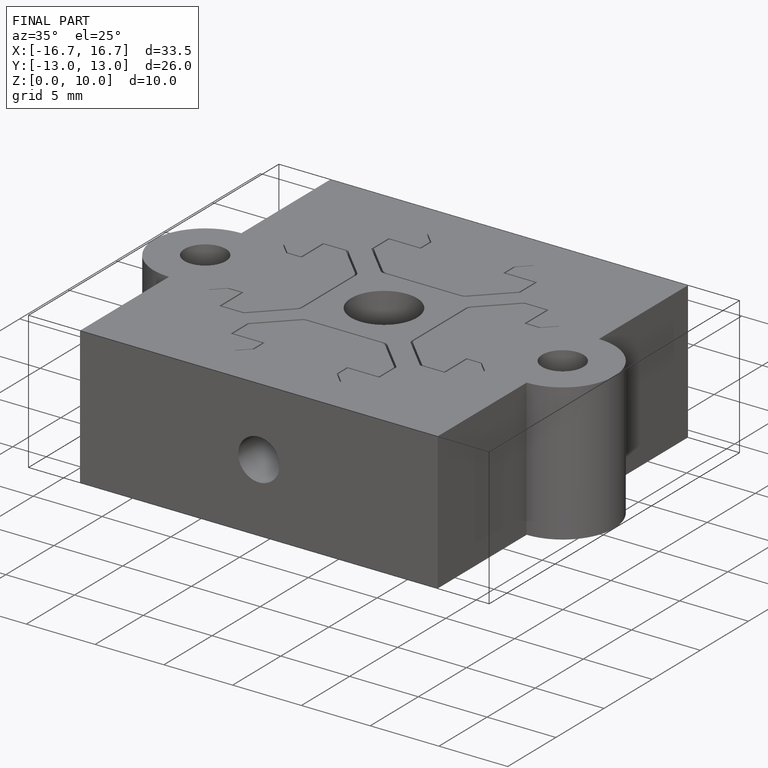
[diagram: finished part — iso view with bounding-box wireframe]
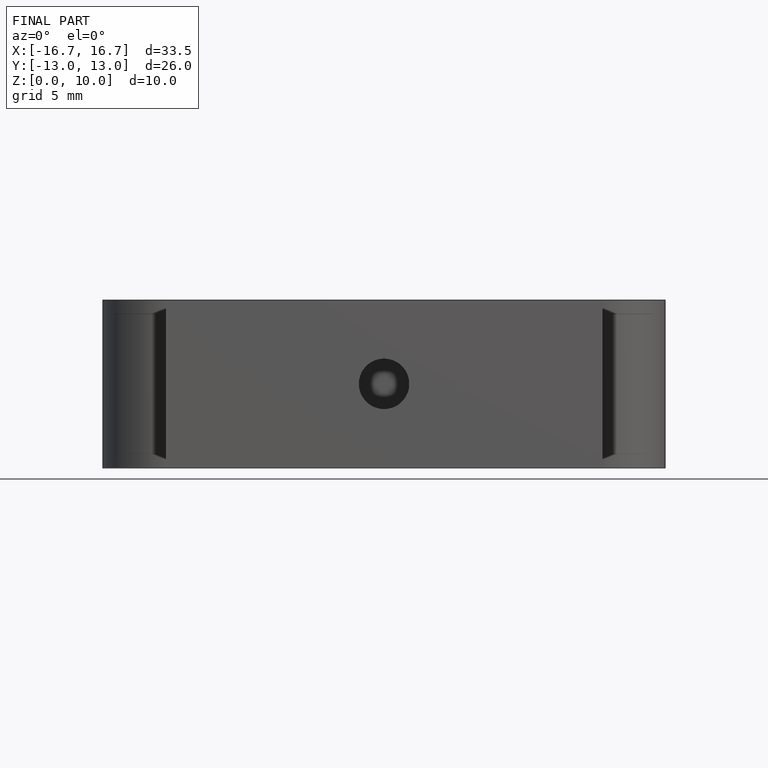
[diagram: finished part — front view with bounding-box wireframe]
